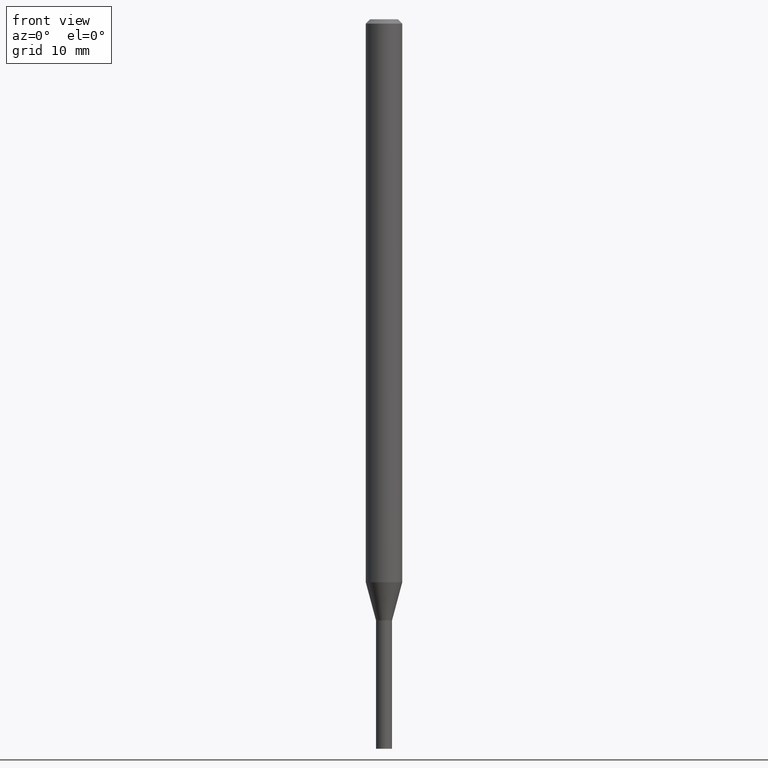
[diagram: clean part render]
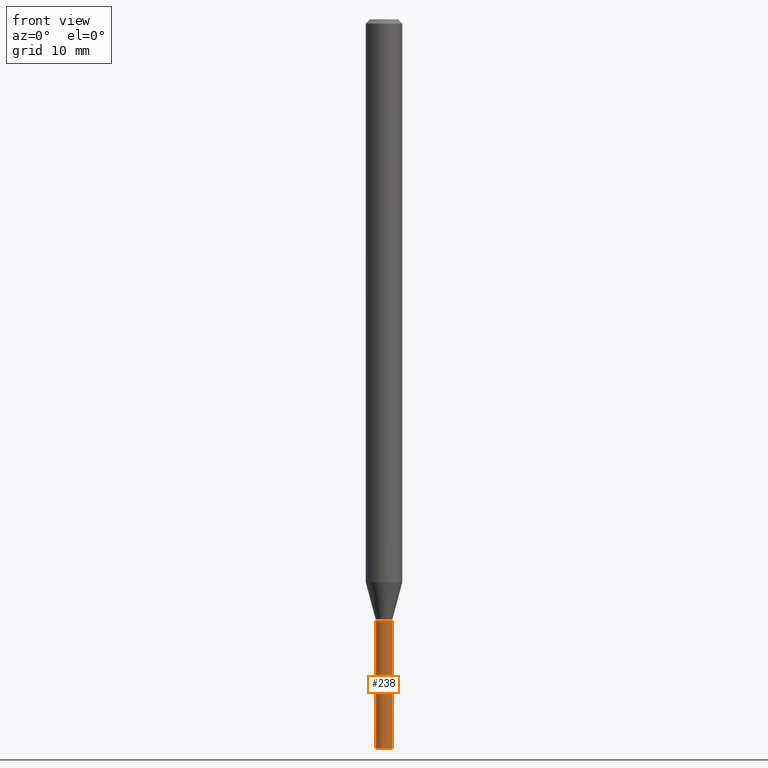
[diagram: same view with one face highlighted and labeled with its STEP entity id]
A machine part, front view. The second image highlights one B-rep face of the part: STEP entity #238.
In plain terms, the highlighted cylindrical surface (edge-blend (fillet) strip) has radius 0.6985 mm, axis along (-0, 0, 1).
Its self-contained STEP definition (entity closure, byte-faithful):
#5 = EDGE_CURVE ( 'NONE', #119, #183, #333, .T. ) ;
#10 = CARTESIAN_POINT ( 'NONE',  ( 0.02750000000000000014, -1.920314736363723444E-16, 1.340948613343882413E-30 ) ) ;
#14 = CARTESIAN_POINT ( 'NONE',  ( -0.02750000000000000014, -7.765178200228343699E-15, -2.500000000000000000 ) ) ;
#37 = DIRECTION ( 'NONE',  ( 1.000000000000000000, -6.982962677686279332E-15, 0.000000000000000000 ) ) ;
#44 = DIRECTION ( 'NONE',  ( -2.445468806185136877E-29, 3.491481338843145188E-15, 1.000000000000000000 ) ) ;
#52 = CARTESIAN_POINT ( 'NONE',  ( 0.02750000000000000014, -7.384483031653253552E-15, -2.060000000000000053 ) ) ;
#56 = EDGE_CURVE ( 'NONE', #393, #268, #355, .T. ) ;
#73 = EDGE_CURVE ( 'NONE', #393, #119, #462, .T. ) ;
#110 = EDGE_LOOP ( 'NONE', ( #257, #152, #338, #146 ) ) ;
#119 = VERTEX_POINT ( 'NONE', #278 ) ;
#146 = ORIENTED_EDGE ( 'NONE', *, *, #236, .F. ) ;
#147 = VECTOR ( 'NONE', #44, 39.37007874015748143 ) ;
#152 = ORIENTED_EDGE ( 'NONE', *, *, #73, .T. ) ;
#158 = CARTESIAN_POINT ( 'NONE',  ( -0.02750000000000000014, -7.765178200228343699E-15, -2.060000000000000053 ) ) ;
#169 = CARTESIAN_POINT ( 'NONE',  ( 6.113672015462842613E-29, -8.728703347107864943E-15, -2.500000000000000000 ) ) ;
#183 = VERTEX_POINT ( 'NONE', #52 ) ;
#187 = CYLINDRICAL_SURFACE ( 'NONE', #379, 0.02750000000000000014 ) ;
#203 = DIRECTION ( 'NONE',  ( -2.445468806185136877E-29, 3.491481338843145188E-15, 1.000000000000000000 ) ) ;
#209 = DIRECTION ( 'NONE',  ( 1.000000000000000000, -6.982962677686244622E-15, 0.000000000000000000 ) ) ;
#216 = DIRECTION ( 'NONE',  ( 1.000000000000000000, -6.982962677686266711E-15, 4.876176775795935793E-29 ) ) ;
#227 = DIRECTION ( 'NONE',  ( -2.445468806185136597E-29, 3.491481338843145583E-15, 1.000000000000000000 ) ) ;
#236 = EDGE_CURVE ( 'NONE', #268, #183, #424, .T. ) ;
#238 = ADVANCED_FACE ( 'NONE', ( #402 ), #187, .T. ) ;
#257 = ORIENTED_EDGE ( 'NONE', *, *, #56, .F. ) ;
#259 = CARTESIAN_POINT ( 'NONE',  ( 0.000000000000000000, 0.000000000000000000, 0.000000000000000000 ) ) ;
#268 = VERTEX_POINT ( 'NONE', #158 ) ;
#274 = AXIS2_PLACEMENT_3D ( 'NONE', #441, #289, #37 ) ;
#278 = CARTESIAN_POINT ( 'NONE',  ( 0.02750000000000000014, -8.920734820744236646E-15, -2.500000000000000000 ) ) ;
#289 = DIRECTION ( 'NONE',  ( -2.445468806185136597E-29, 3.491481338843145583E-15, 1.000000000000000000 ) ) ;
#290 = AXIS2_PLACEMENT_3D ( 'NONE', #169, #461, #209 ) ;
#333 = LINE ( 'NONE', #10, #147 ) ;
#338 = ORIENTED_EDGE ( 'NONE', *, *, #5, .T. ) ;
#355 = LINE ( 'NONE', #382, #423 ) ;
#379 = AXIS2_PLACEMENT_3D ( 'NONE', #259, #227, #216 ) ;
#382 = CARTESIAN_POINT ( 'NONE',  ( -0.02750000000000000014, 1.953992523340275521E-16, -1.352707149820099181E-30 ) ) ;
#393 = VERTEX_POINT ( 'NONE', #14 ) ;
#402 = FACE_OUTER_BOUND ( 'NONE', #110, .T. ) ;
#423 = VECTOR ( 'NONE', #203, 39.37007874015748143 ) ;
#424 = CIRCLE ( 'NONE', #274, 0.02750000000000000014 ) ;
#441 = CARTESIAN_POINT ( 'NONE',  ( 5.037665740741381905E-29, -7.192451558016880271E-15, -2.060000000000000053 ) ) ;
#461 = DIRECTION ( 'NONE',  ( -2.445468806185136597E-29, 3.491481338843145583E-15, 1.000000000000000000 ) ) ;
#462 = CIRCLE ( 'NONE', #290, 0.02750000000000000014 ) ;